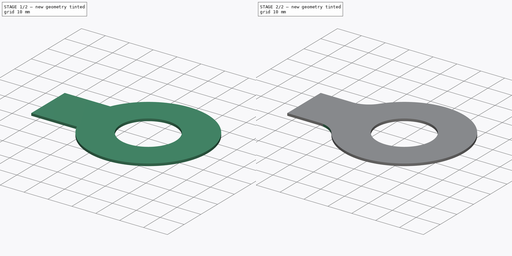
[diagram: build sequence overview — one tinted view per stage of 2, left to right]
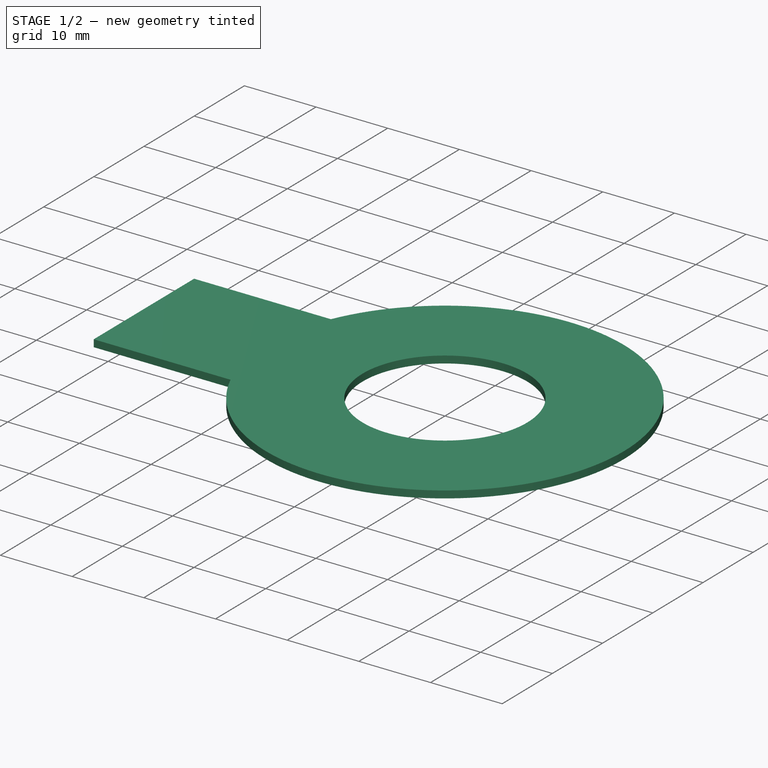
[diagram: stage 1 of 2 — iso view after this stage's code; geometry added in this stage tinted green]
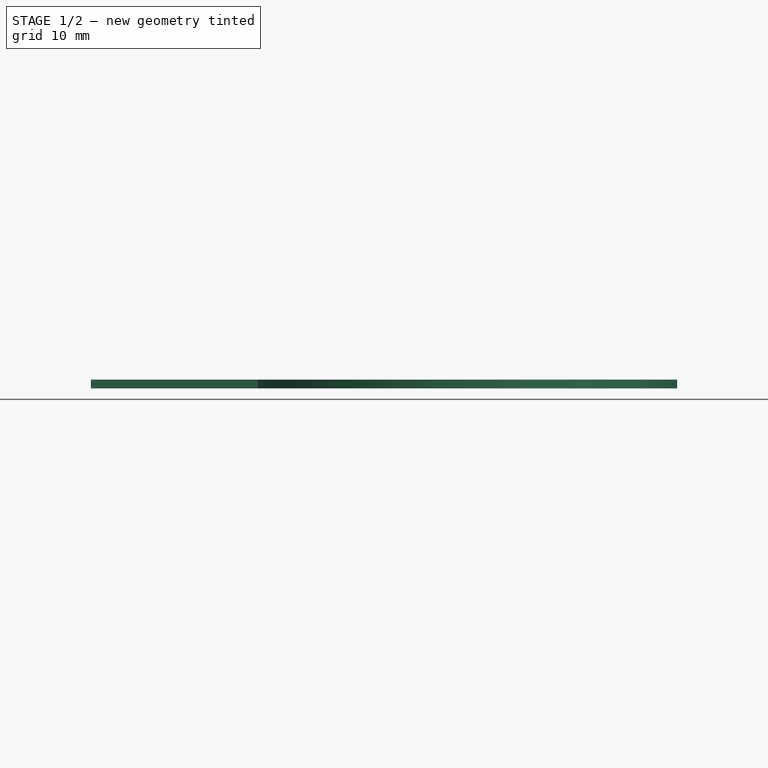
[diagram: stage 1 of 2 — front view after this stage's code; geometry added in this stage tinted green]
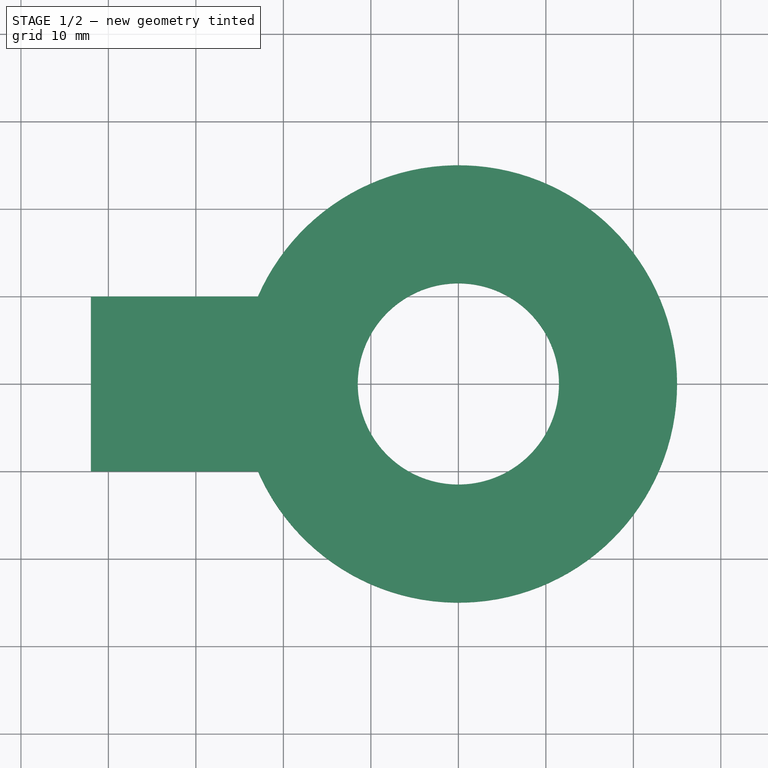
[diagram: stage 1 of 2 — top view after this stage's code; geometry added in this stage tinted green]
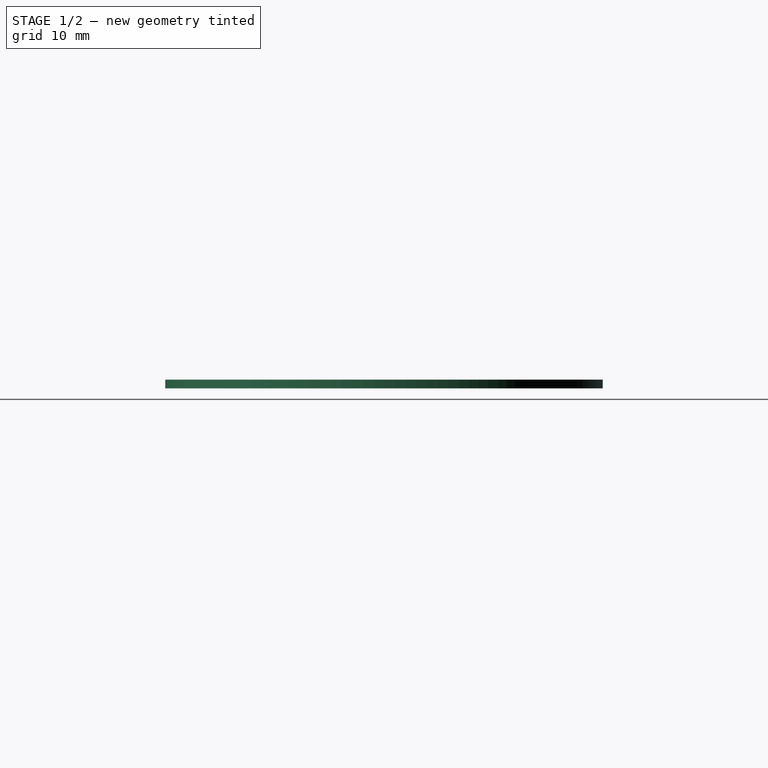
[diagram: stage 1 of 2 — right view after this stage's code; geometry added in this stage tinted green]
FCSTD DOCUMENT  (FreeCAD 0.15R4671 (Git))
Label: DIN93_M22TabWasher
License: CreativeCommons Attribution-ShareAlike
LicenseURL: http://creativecommons.org/licenses/by-sa/4.0/
objects: Sketcher::SketchObject×1, PartDesign::Pad×1, PartDesign::Fillet×1
note: 4 computed .brp shape members not serialized (recipe doc carries the construction recipe); baked Part::Feature solids carry a one-line shape summary decoded from their .brp

FEATURE [Sketcher::SketchObject] Sketch
  sketch-geometry (5):
    g0: Circle CenterX=0 CenterY=0 CenterZ=0 NormalX=0 NormalY=0 NormalZ=1 Radius=11.5
    g1: LineSegment StartX=-42 StartY=10 StartZ=0 EndX=-22.9129 EndY=10 EndZ=0
    g2: LineSegment StartX=-22.9129 StartY=-10 StartZ=0 EndX=-42 EndY=-10 EndZ=0
    g3: LineSegment StartX=-42 StartY=-10 StartZ=0 EndX=-42 EndY=10 EndZ=0
    g4: ArcOfCircle CenterX=0 CenterY=0 CenterZ=0 NormalX=0 NormalY=0 NormalZ=1 Radius=25 StartAngle=3.55311 EndAngle=9.01326
  constraints (13):
    c: Coincident(g0,g-1)
    c: Radius(g0) = 11.5
    c: Coincident(g2,g3)
    c: Coincident(g3,g1)
    c: Symmetric(g1,g2,g-1)
    c: DistanceY(g3) = 20
    c: DistanceX(g-1,g2) = -42
    c: Coincident(g4,g-1)
    c: Radius(g4) = 25
    c: Coincident(g4,g1)
    c: Coincident(g2,g4)
    c: Horizontal(g1)
    c: Horizontal(g2)
FEATURE [PartDesign::Pad] Pad
  Length = 1
  Length2 = 100
  Sketch = -> Sketch
  Type = 0
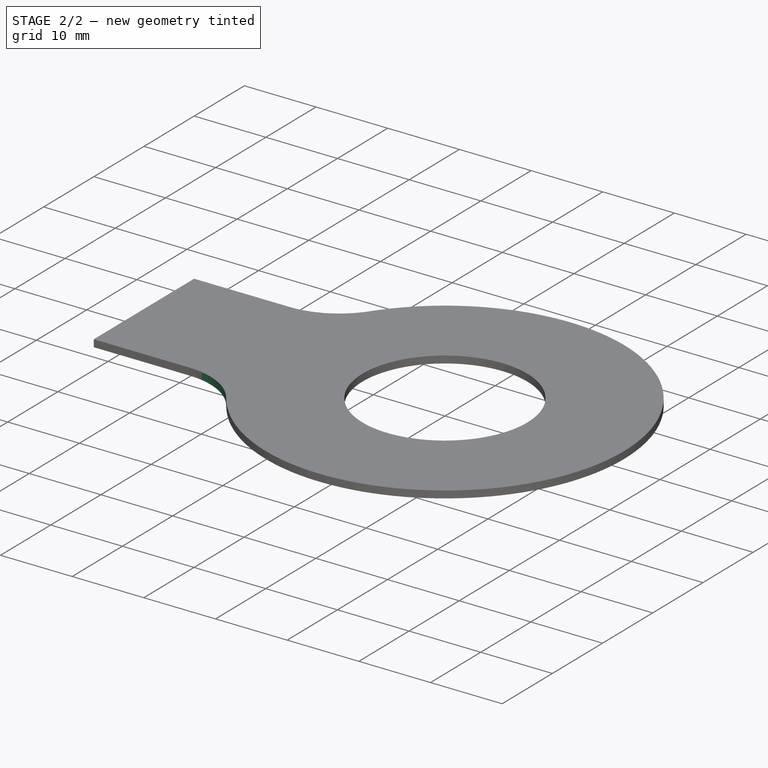
[diagram: stage 2 of 2 — iso view after this stage's code; geometry added in this stage tinted green]
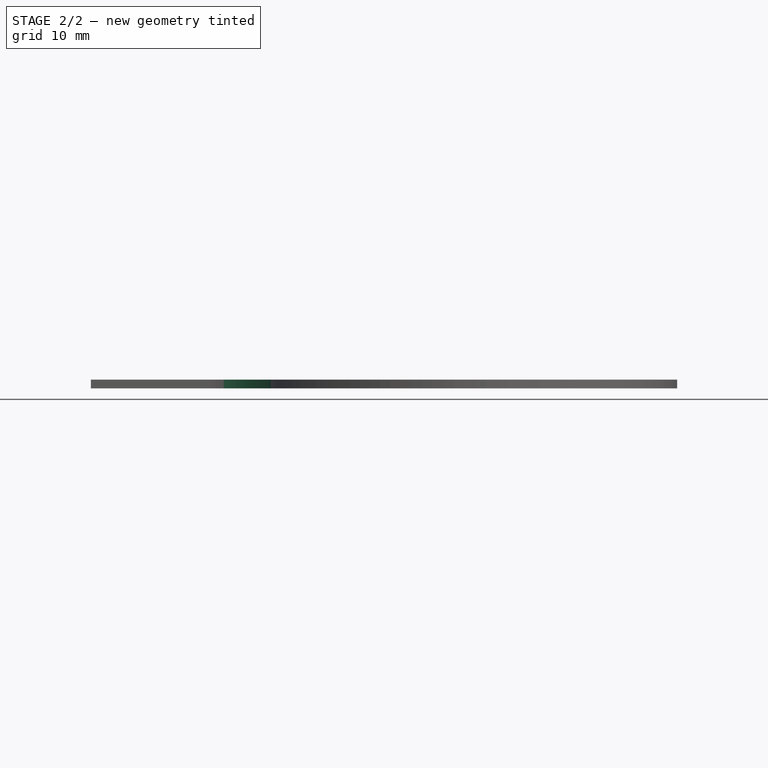
[diagram: stage 2 of 2 — front view after this stage's code; geometry added in this stage tinted green]
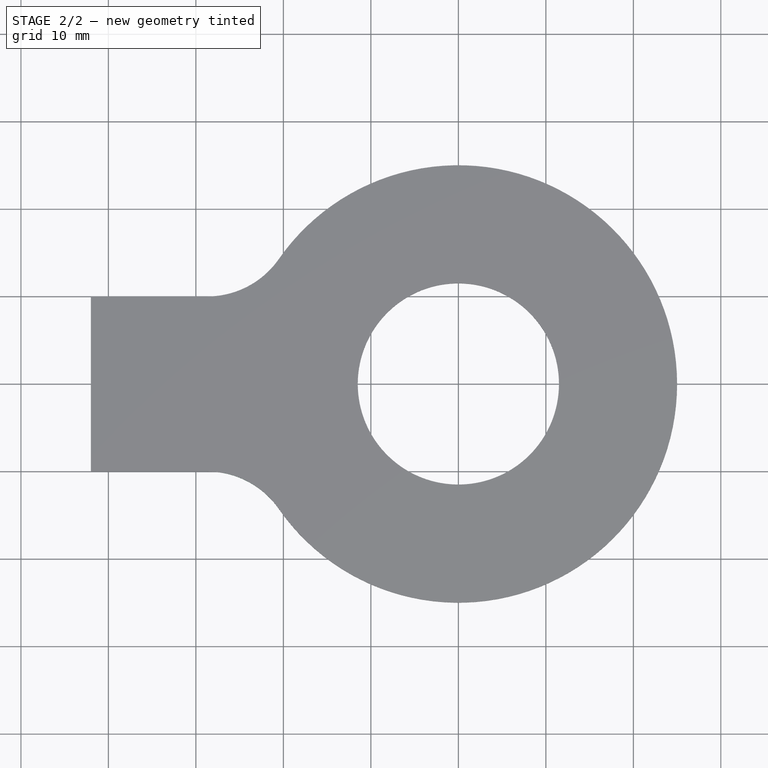
[diagram: stage 2 of 2 — top view after this stage's code; geometry added in this stage tinted green]
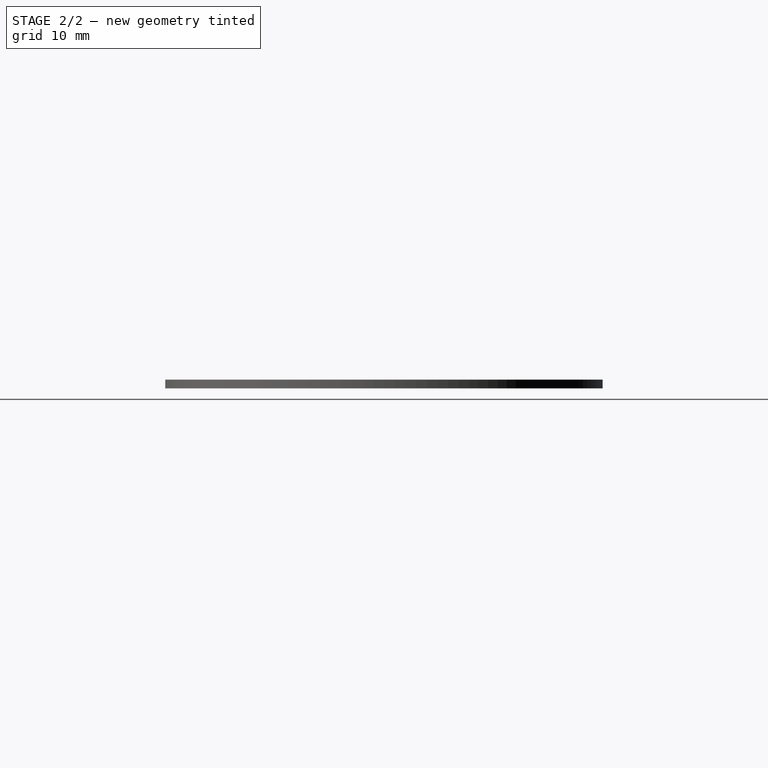
[diagram: stage 2 of 2 — right view after this stage's code; geometry added in this stage tinted green]
FEATURE [PartDesign::Fillet] Fillet
  Base = -> Pad [Edge8,Edge1]
  Radius = 10
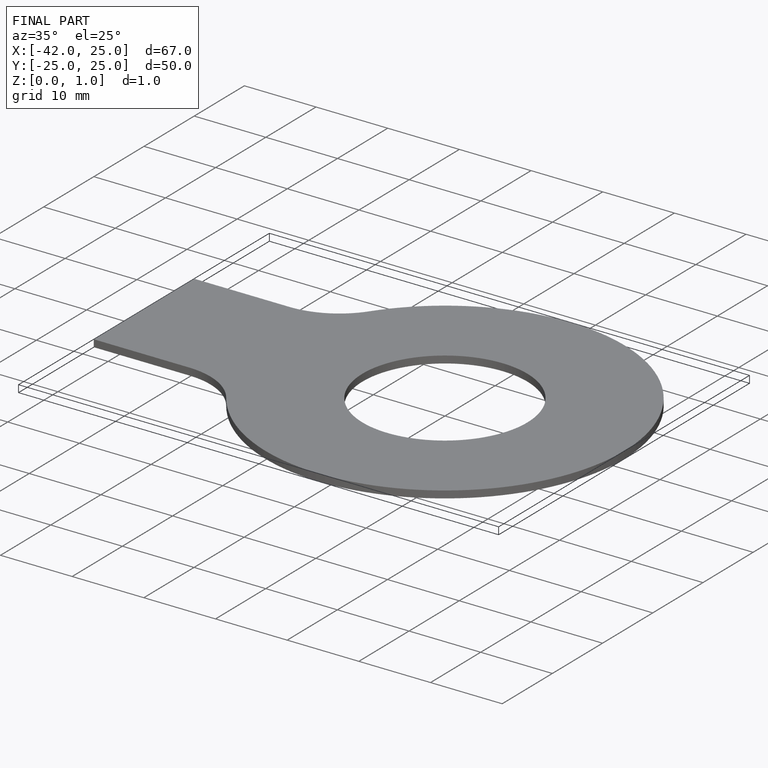
[diagram: finished part — iso view with bounding-box wireframe]
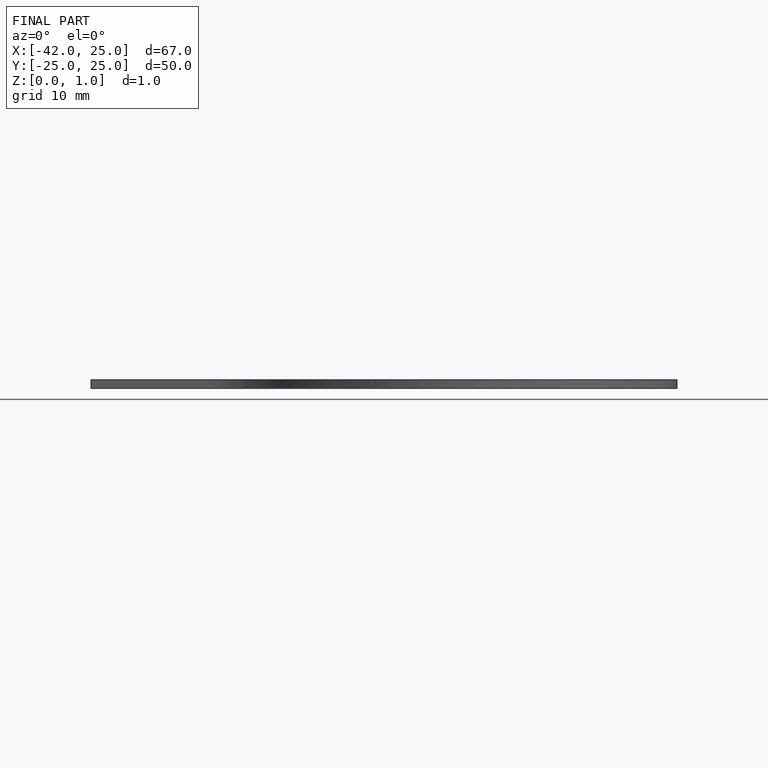
[diagram: finished part — front view with bounding-box wireframe]
